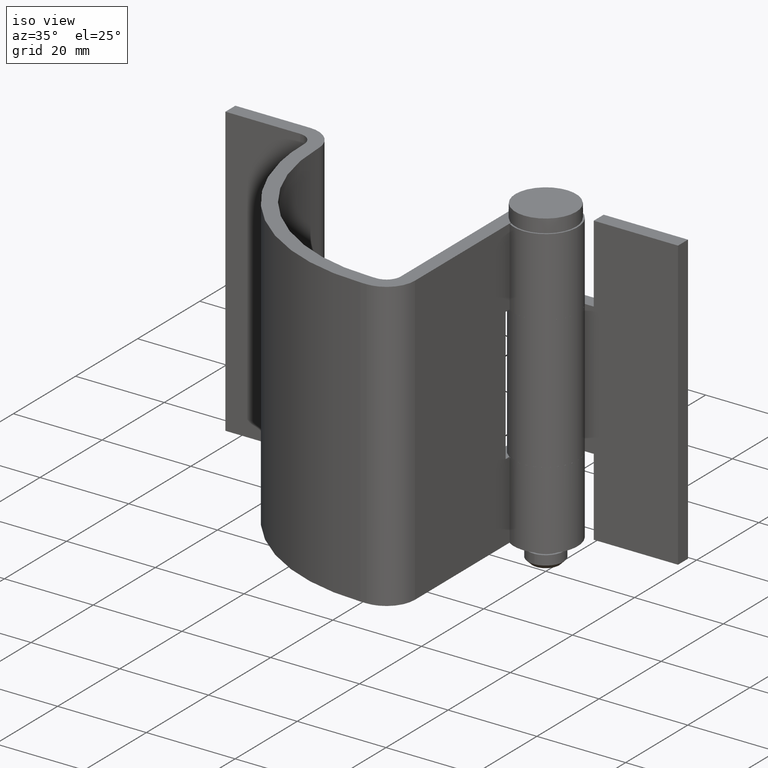
[diagram: clean part render]
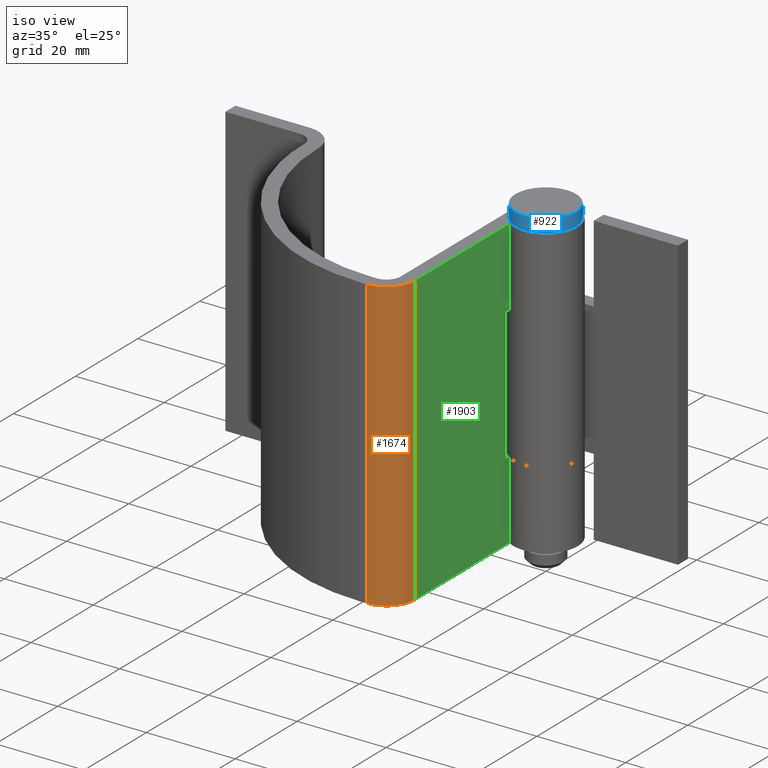
[diagram: same view with three faces highlighted in distinct colors, each labeled with its STEP entity id]
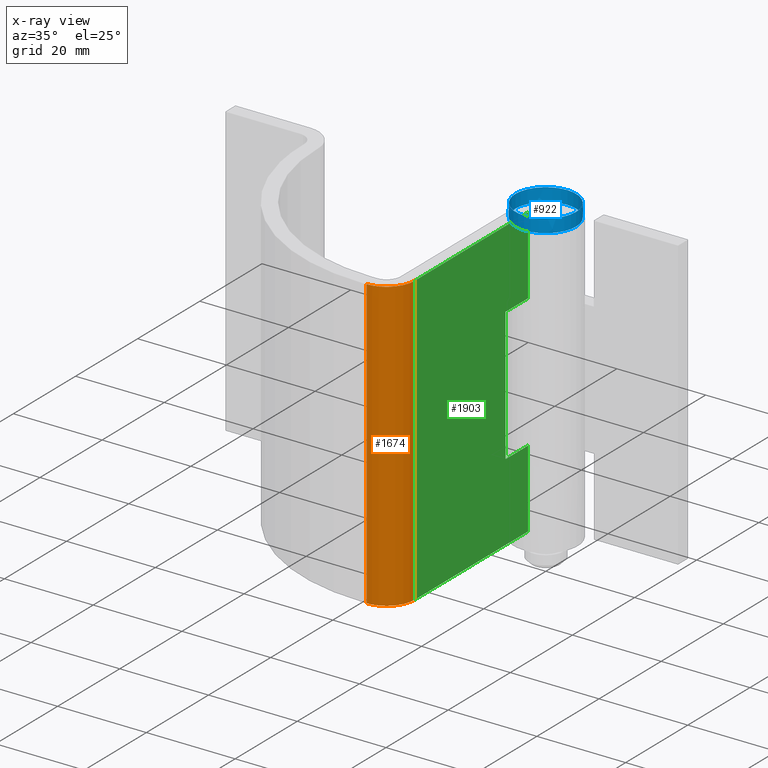
[diagram: x-ray of the same camera — body ghosted, the three highlighted faces saturated]
A machine part, iso view with three faces highlighted in distinct colors.
The next image is the same camera in x-ray (body ghosted, the three faces saturated) — at least one of them is partly hidden behind the body in this view.
Their STEP definitions:

[orange] entity #1674 — the highlighted face is a freeform B-spline surface patch.
#1289=CARTESIAN_POINT('',(-4.0,-36.399999999999999,5.0));
#1290=VERTEX_POINT('',#1289);
#1296=CARTESIAN_POINT('',(-10.400000000000000,-42.799999999999997,5.0));
#1297=VERTEX_POINT('',#1296);
#1298=CARTESIAN_POINT('',(-3.999999999999999,-36.399999999999999,5.0));
#1299=CARTESIAN_POINT('',(-4.000000000000000,-42.800000000000004,5.000000000000001));
#1300=CARTESIAN_POINT('',(-10.400000000000000,-42.799999999999997,5.0));
#1308=(BOUNDED_CURVE()B_SPLINE_CURVE(2,(#1298,#1299,#1300),.UNSPECIFIED.,.F.,.U.)CURVE()GEOMETRIC_REPRESENTATION_ITEM()QUASI_UNIFORM_CURVE()RATIONAL_B_SPLINE_CURVE((1.0,0.707106781186548,1.0))REPRESENTATION_ITEM(''));
#1309=EDGE_CURVE('',#1290,#1297,#1308,.T.);
#1415=CARTESIAN_POINT('',(-10.400000000000000,-42.799999999999997,70.0));
#1416=VERTEX_POINT('',#1415);
#1422=CARTESIAN_POINT('',(-4.0,-36.399999999999999,70.0));
#1423=VERTEX_POINT('',#1422);
#1424=CARTESIAN_POINT('',(-3.999999999999999,-36.399999999999999,70.0));
#1425=CARTESIAN_POINT('',(-4.000000000000000,-42.800000000000004,70.0));
#1426=CARTESIAN_POINT('',(-10.400000000000000,-42.799999999999997,70.0));
#1434=(BOUNDED_CURVE()B_SPLINE_CURVE(2,(#1424,#1425,#1426),.UNSPECIFIED.,.F.,.U.)CURVE()GEOMETRIC_REPRESENTATION_ITEM()QUASI_UNIFORM_CURVE()RATIONAL_B_SPLINE_CURVE((1.0,0.707106781186548,1.0))REPRESENTATION_ITEM(''));
#1435=EDGE_CURVE('',#1423,#1416,#1434,.T.);
#1640=CARTESIAN_POINT('',(-10.400000000000000,-42.799999999999997,70.0));
#1641=CARTESIAN_POINT('',(-10.400000000000000,-42.799999999999997,5.0));
#1642=QUASI_UNIFORM_CURVE('',1,(#1640,#1641),.UNSPECIFIED.,.F.,.U.);
#1643=EDGE_CURVE('',#1416,#1297,#1642,.T.);
#1650=CARTESIAN_POINT('',(-10.567532469170390,-42.797806879843563,71.625000000000014));
#1651=CARTESIAN_POINT('',(-10.567532469170390,-42.797806879843563,3.334375000000009));
#1652=CARTESIAN_POINT('',(-3.520098619021398,-42.982350429907584,71.625000000000014));
#1653=CARTESIAN_POINT('',(-3.520098619021398,-42.982350429907584,3.334375000000009));
#1654=CARTESIAN_POINT('',(-4.015843246625809,-35.949952726542307,71.625000000000028));
#1655=CARTESIAN_POINT('',(-4.015843246625809,-35.949952726542307,3.334375000000009));
#1663=(BOUNDED_SURFACE()B_SPLINE_SURFACE(1,2,((#1650,#1652,#1654),(#1651,#1653,#1655)),.UNSPECIFIED.,.F.,.F.,.U.)B_SPLINE_SURFACE_WITH_KNOTS((2,2),(3,3),(0.0,68.290625000000020),(0.0,11.335309550174779),.UNSPECIFIED.)GEOMETRIC_REPRESENTATION_ITEM()RATIONAL_B_SPLINE_SURFACE(((1.0,0.670944265214097,0.996392565412631),(1.0,0.670944265214097,0.996392565412631)))REPRESENTATION_ITEM('')SURFACE());
#1664=ORIENTED_EDGE('',*,*,#1309,.F.);
#1665=CARTESIAN_POINT('',(-4.0,-36.399999999999999,70.0));
#1666=CARTESIAN_POINT('',(-4.0,-36.399999999999999,5.0));
#1667=QUASI_UNIFORM_CURVE('',1,(#1665,#1666),.UNSPECIFIED.,.F.,.U.);
#1668=EDGE_CURVE('',#1423,#1290,#1667,.T.);
#1669=ORIENTED_EDGE('',*,*,#1668,.F.);
#1670=ORIENTED_EDGE('',*,*,#1435,.T.);
#1671=ORIENTED_EDGE('',*,*,#1643,.T.);
#1672=EDGE_LOOP('',(#1664,#1669,#1670,#1671));
#1673=FACE_OUTER_BOUND('',#1672,.T.);
#1674=ADVANCED_FACE('',(#1673),#1663,.T.);

[blue] entity #922 — the highlighted face is a freeform B-spline surface patch.
#801=CARTESIAN_POINT('',(6.837397168630480,0.0,72.999999986134597));
#802=VERTEX_POINT('',#801);
#803=CARTESIAN_POINT('',(-6.837397168630480,0.0,72.999999986134597));
#804=VERTEX_POINT('',#803);
#805=CARTESIAN_POINT('',(6.837397168630480,0.0,72.999999986134597));
#806=CARTESIAN_POINT('',(6.837397168630479,-6.837397168630479,72.999999986134597));
#807=CARTESIAN_POINT('',(0.0,-6.837397168630480,72.999999986134597));
#808=CARTESIAN_POINT('',(-6.837397168630479,-6.837397168630479,72.999999986134597));
#809=CARTESIAN_POINT('',(-6.837397168630480,0.0,72.999999986134597));
#817=(BOUNDED_CURVE()B_SPLINE_CURVE(2,(#805,#806,#807,#808,#809),.UNSPECIFIED.,.F.,.U.)B_SPLINE_CURVE_WITH_KNOTS((3,2,3),(0.500000000000000,0.750000000000000,1.0),.UNSPECIFIED.)CURVE()GEOMETRIC_REPRESENTATION_ITEM()RATIONAL_B_SPLINE_CURVE((1.0,0.707106781186548,1.0,0.707106781186548,1.0))REPRESENTATION_ITEM(''));
#818=EDGE_CURVE('',#802,#804,#817,.T.);
#820=CARTESIAN_POINT('',(-6.837397168630480,0.0,72.999999986134597));
#821=CARTESIAN_POINT('',(-6.837397168630479,6.837397168630479,72.999999986134597));
#822=CARTESIAN_POINT('',(0.0,6.837397168630480,72.999999986134597));
#823=CARTESIAN_POINT('',(6.837397168630479,6.837397168630479,72.999999986134597));
#824=CARTESIAN_POINT('',(6.837397168630480,0.0,72.999999986134597));
#832=(BOUNDED_CURVE()B_SPLINE_CURVE(2,(#820,#821,#822,#823,#824),.UNSPECIFIED.,.F.,.U.)B_SPLINE_CURVE_WITH_KNOTS((3,2,3),(0.0,0.250000000000000,0.500000000000000),.UNSPECIFIED.)CURVE()GEOMETRIC_REPRESENTATION_ITEM()RATIONAL_B_SPLINE_CURVE((1.0,0.707106781186548,1.0,0.707106781186548,1.0))REPRESENTATION_ITEM(''));
#833=EDGE_CURVE('',#804,#802,#832,.T.);
#838=CARTESIAN_POINT('',(-4.166826270854379,4.166826270854382,75.278242667833226));
#839=CARTESIAN_POINT('',(-3.869966885417776,5.159955847223706,74.510362682809642));
#840=CARTESIAN_POINT('',(-1.693658976456549,6.774635905826204,73.261904748699678));
#841=CARTESIAN_POINT('',(1.693658976456553,6.774635905826204,73.261904748699678));
#842=CARTESIAN_POINT('',(3.869966885417785,5.159955847223706,74.510362682809614));
#843=CARTESIAN_POINT('',(4.166826270854391,4.166826270854382,75.278242667833211));
#844=CARTESIAN_POINT('',(-5.159955847223704,3.869966885417778,74.510362682809642));
#845=CARTESIAN_POINT('',(-5.080976929369649,5.080976929369654,73.261904748699678));
#846=CARTESIAN_POINT('',(-2.465028409586341,7.395085228759018,70.876237609776027));
#847=CARTESIAN_POINT('',(2.465028409586338,7.395085228759018,70.876237609776027));
#848=CARTESIAN_POINT('',(5.080976929369657,5.080976929369654,73.261904748699635));
#849=CARTESIAN_POINT('',(5.159955847223714,3.869966885417778,74.510362682809614));
#850=CARTESIAN_POINT('',(-6.774635905826200,1.693658976456549,73.261904748699678));
#851=CARTESIAN_POINT('',(-7.395085228759018,2.465028409586339,70.876237609776027));
#852=CARTESIAN_POINT('',(-4.526688525663110,4.526688525663108,64.500000000000014));
#853=CARTESIAN_POINT('',(4.526688525663090,4.526688525663108,64.500000000000000));
#854=CARTESIAN_POINT('',(7.395085228759018,2.465028409586339,70.876237609776027));
#855=CARTESIAN_POINT('',(6.774635905826208,1.693658976456549,73.261904748699635));
#856=CARTESIAN_POINT('',(-6.774635905826200,-1.693658976456553,73.261904748699678));
#857=CARTESIAN_POINT('',(-7.395085228759018,-2.465028409586339,70.876237609776027));
#858=CARTESIAN_POINT('',(-4.526688525663110,-4.526688525663092,64.500000000000000));
#859=CARTESIAN_POINT('',(4.526688525663090,-4.526688525663092,64.500000000000000));
#860=CARTESIAN_POINT('',(7.395085228759018,-2.465028409586339,70.876237609776027));
#861=CARTESIAN_POINT('',(6.774635905826208,-1.693658976456553,73.261904748699635));
#862=CARTESIAN_POINT('',(-5.159955847223704,-3.869966885417785,74.510362682809614));
#863=CARTESIAN_POINT('',(-5.080976929369649,-5.080976929369654,73.261904748699635));
#864=CARTESIAN_POINT('',(-2.465028409586341,-7.395085228759018,70.876237609776027));
#865=CARTESIAN_POINT('',(2.465028409586338,-7.395085228759018,70.876237609776027));
#866=CARTESIAN_POINT('',(5.080976929369657,-5.080976929369654,73.261904748699635));
#867=CARTESIAN_POINT('',(5.159955847223714,-3.869966885417785,74.510362682809614));
#868=CARTESIAN_POINT('',(-4.166826270854379,-4.166826270854391,75.278242667833211));
#869=CARTESIAN_POINT('',(-3.869966885417776,-5.159955847223712,74.510362682809614));
#870=CARTESIAN_POINT('',(-1.693658976456549,-6.774635905826204,73.261904748699635));
#871=CARTESIAN_POINT('',(1.693658976456553,-6.774635905826204,73.261904748699635));
#872=CARTESIAN_POINT('',(3.869966885417785,-5.159955847223712,74.510362682809614));
#873=CARTESIAN_POINT('',(4.166826270854391,-4.166826270854391,75.278242667833211));
#881=(BOUNDED_SURFACE()B_SPLINE_SURFACE(2,2,((#838,#844,#850,#856,#862,#868),(#839,#845,#851,#857,#863,#869),(#840,#846,#852,#858,#864,#870),(#841,#847,#853,#859,#865,#871),(#842,#848,#854,#860,#866,#872),(#843,#849,#855,#861,#867,#873)),.UNSPECIFIED.,.F.,.F.,.U.)B_SPLINE_SURFACE_WITH_KNOTS((3,1,1,1,3),(3,1,1,1,3),(0.0,7.487755461199941,14.975510922399881,22.463266383599819,29.951021844799769),(0.0,7.487755461199942,14.975510922399881,22.463266383599830,29.951021844799769),.UNSPECIFIED.)GEOMETRIC_REPRESENTATION_ITEM()RATIONAL_B_SPLINE_SURFACE(((4.345454531978772,3.509090898984079,2.672727265989386,2.672727265989386,3.509090898984079,4.345454531978772),(3.509090898984079,2.672727265989386,1.836363632994693,1.836363632994693,2.672727265989386,3.509090898984079),(2.672727265989386,1.836363632994693,1.0,1.0,1.836363632994693,2.672727265989386),(2.672727265989386,1.836363632994693,1.0,1.0,1.836363632994693,2.672727265989386),(3.509090898984079,2.672727265989386,1.836363632994693,1.836363632994693,2.672727265989386,3.509090898984079),(4.345454531978772,3.509090898984079,2.672727265989386,2.672727265989386,3.509090898984079,4.345454531978772)))REPRESENTATION_ITEM('')SURFACE());
#882=ORIENTED_EDGE('',*,*,#833,.T.);
#883=ORIENTED_EDGE('',*,*,#818,.T.);
#884=EDGE_LOOP('',(#882,#883));
#885=FACE_OUTER_BOUND('',#884,.T.);
#886=CARTESIAN_POINT('',(-6.837397165588670,0.0,70.0));
#887=VERTEX_POINT('',#886);
#888=CARTESIAN_POINT('',(6.837397165588670,0.0,70.0));
#889=VERTEX_POINT('',#888);
#890=CARTESIAN_POINT('',(-6.837397165588670,0.0,70.0));
#891=CARTESIAN_POINT('',(-6.837397165588671,6.837397165588671,70.0));
#892=CARTESIAN_POINT('',(0.0,6.837397165588670,70.0));
#893=CARTESIAN_POINT('',(6.837397165588671,6.837397165588671,70.0));
#894=CARTESIAN_POINT('',(6.837397165588670,0.0,70.0));
#902=(BOUNDED_CURVE()B_SPLINE_CURVE(2,(#890,#891,#892,#893,#894),.UNSPECIFIED.,.F.,.U.)B_SPLINE_CURVE_WITH_KNOTS((3,2,3),(0.0,0.250000000000000,0.500000000000000),.UNSPECIFIED.)CURVE()GEOMETRIC_REPRESENTATION_ITEM()RATIONAL_B_SPLINE_CURVE((1.0,0.707106781186548,1.0,0.707106781186548,1.0))REPRESENTATION_ITEM(''));
#903=EDGE_CURVE('',#887,#889,#902,.T.);
#904=ORIENTED_EDGE('',*,*,#903,.F.);
#905=CARTESIAN_POINT('',(6.837397165588670,0.0,70.0));
#906=CARTESIAN_POINT('',(6.837397165588671,-6.837397165588671,70.0));
#907=CARTESIAN_POINT('',(0.0,-6.837397165588670,70.0));
#908=CARTESIAN_POINT('',(-6.837397165588671,-6.837397165588671,70.0));
#909=CARTESIAN_POINT('',(-6.837397165588670,0.0,70.0));
#917=(BOUNDED_CURVE()B_SPLINE_CURVE(2,(#905,#906,#907,#908,#909),.UNSPECIFIED.,.F.,.U.)B_SPLINE_CURVE_WITH_KNOTS((3,2,3),(0.500000000000000,0.750000000000000,1.0),.UNSPECIFIED.)CURVE()GEOMETRIC_REPRESENTATION_ITEM()RATIONAL_B_SPLINE_CURVE((1.0,0.707106781186548,1.0,0.707106781186548,1.0))REPRESENTATION_ITEM(''));
#918=EDGE_CURVE('',#889,#887,#917,.T.);
#919=ORIENTED_EDGE('',*,*,#918,.F.);
#920=EDGE_LOOP('',(#904,#919));
#921=FACE_BOUND('',#920,.T.);
#922=ADVANCED_FACE('',(#885,#921),#881,.T.);

[green] entity #1903 — the highlighted face is a freeform B-spline surface patch.
#1015=CARTESIAN_POINT('',(-4.0,-7.200000000000000,22.500000000000000));
#1016=VERTEX_POINT('',#1015);
#1022=CARTESIAN_POINT('',(-4.0,4.898431E-016,22.500000000000000));
#1023=VERTEX_POINT('',#1022);
#1024=CARTESIAN_POINT('',(-4.0,-7.200000000000000,22.500000000000000));
#1025=CARTESIAN_POINT('',(-4.0,4.898431E-016,22.500000000000000));
#1026=QUASI_UNIFORM_CURVE('',1,(#1024,#1025),.UNSPECIFIED.,.F.,.U.);
#1027=EDGE_CURVE('',#1016,#1023,#1026,.T.);
#1072=CARTESIAN_POINT('',(-4.0,4.898431E-016,52.500000000000000));
#1073=VERTEX_POINT('',#1072);
#1093=CARTESIAN_POINT('',(-4.0,-7.200000000000000,52.500000000000000));
#1094=VERTEX_POINT('',#1093);
#1095=CARTESIAN_POINT('',(-4.0,-7.200000000000000,52.500000000000000));
#1096=CARTESIAN_POINT('',(-4.0,4.898431E-016,52.500000000000000));
#1097=QUASI_UNIFORM_CURVE('',1,(#1095,#1096),.UNSPECIFIED.,.F.,.U.);
#1098=EDGE_CURVE('',#1094,#1073,#1097,.T.);
#1141=CARTESIAN_POINT('',(-4.0,-7.200000000000000,52.500000000000000));
#1142=CARTESIAN_POINT('',(-4.0,-7.200000000000000,22.500000000000000));
#1143=QUASI_UNIFORM_CURVE('',1,(#1141,#1142),.UNSPECIFIED.,.F.,.U.);
#1144=EDGE_CURVE('',#1094,#1016,#1143,.T.);
#1268=CARTESIAN_POINT('',(-4.0,4.898425E-016,5.0));
#1269=VERTEX_POINT('',#1268);
#1289=CARTESIAN_POINT('',(-4.0,-36.399999999999999,5.0));
#1290=VERTEX_POINT('',#1289);
#1291=CARTESIAN_POINT('',(-4.0,4.898425E-016,5.0));
#1292=CARTESIAN_POINT('',(-4.0,-36.399999999999999,5.0));
#1293=QUASI_UNIFORM_CURVE('',1,(#1291,#1292),.UNSPECIFIED.,.F.,.U.);
#1294=EDGE_CURVE('',#1269,#1290,#1293,.T.);
#1422=CARTESIAN_POINT('',(-4.0,-36.399999999999999,70.0));
#1423=VERTEX_POINT('',#1422);
#1437=CARTESIAN_POINT('',(-4.0,4.898425E-016,70.0));
#1438=VERTEX_POINT('',#1437);
#1439=CARTESIAN_POINT('',(-4.0,4.898425E-016,70.0));
#1440=CARTESIAN_POINT('',(-4.0,-36.399999999999999,70.0));
#1441=QUASI_UNIFORM_CURVE('',1,(#1439,#1440),.UNSPECIFIED.,.F.,.U.);
#1442=EDGE_CURVE('',#1438,#1423,#1441,.T.);
#1665=CARTESIAN_POINT('',(-4.0,-36.399999999999999,70.0));
#1666=CARTESIAN_POINT('',(-4.0,-36.399999999999999,5.0));
#1667=QUASI_UNIFORM_CURVE('',1,(#1665,#1666),.UNSPECIFIED.,.F.,.U.);
#1668=EDGE_CURVE('',#1423,#1290,#1667,.T.);
#1703=CARTESIAN_POINT('',(-4.0,4.898431E-016,22.500000000000000));
#1704=CARTESIAN_POINT('',(-4.0,4.898425E-016,5.0));
#1705=QUASI_UNIFORM_CURVE('',1,(#1703,#1704),.UNSPECIFIED.,.F.,.U.);
#1706=EDGE_CURVE('',#1023,#1269,#1705,.T.);
#1884=CARTESIAN_POINT('',(-4.0,-38.218181637935523,73.246749874017397));
#1885=CARTESIAN_POINT('',(-4.0,-38.218181637935523,1.753248382546753));
#1886=CARTESIAN_POINT('',(-4.0,1.818180987052801,73.246749874017397));
#1887=CARTESIAN_POINT('',(-4.0,1.818180987052801,1.753248382546753));
#1888=B_SPLINE_SURFACE_WITH_KNOTS('',1,1,((#1884,#1886),(#1885,#1887)),.UNSPECIFIED.,.F.,.F.,.U.,(2,2),(2,2),(0.0,71.493501491470639),(0.0,40.036362624988321),.UNSPECIFIED.);
#1889=ORIENTED_EDGE('',*,*,#1144,.F.);
#1890=ORIENTED_EDGE('',*,*,#1098,.T.);
#1891=CARTESIAN_POINT('',(-4.0,4.898425E-016,70.0));
#1892=CARTESIAN_POINT('',(-4.0,4.898431E-016,52.500000000000000));
#1893=QUASI_UNIFORM_CURVE('',1,(#1891,#1892),.UNSPECIFIED.,.F.,.U.);
#1894=EDGE_CURVE('',#1438,#1073,#1893,.T.);
#1895=ORIENTED_EDGE('',*,*,#1894,.F.);
#1896=ORIENTED_EDGE('',*,*,#1442,.T.);
#1897=ORIENTED_EDGE('',*,*,#1668,.T.);
#1898=ORIENTED_EDGE('',*,*,#1294,.F.);
#1899=ORIENTED_EDGE('',*,*,#1706,.F.);
#1900=ORIENTED_EDGE('',*,*,#1027,.F.);
#1901=EDGE_LOOP('',(#1889,#1890,#1895,#1896,#1897,#1898,#1899,#1900));
#1902=FACE_OUTER_BOUND('',#1901,.T.);
#1903=ADVANCED_FACE('',(#1902),#1888,.T.);